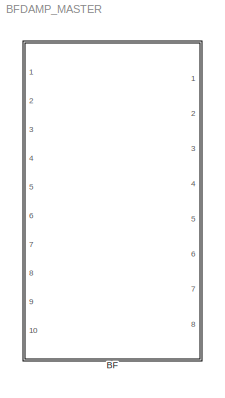
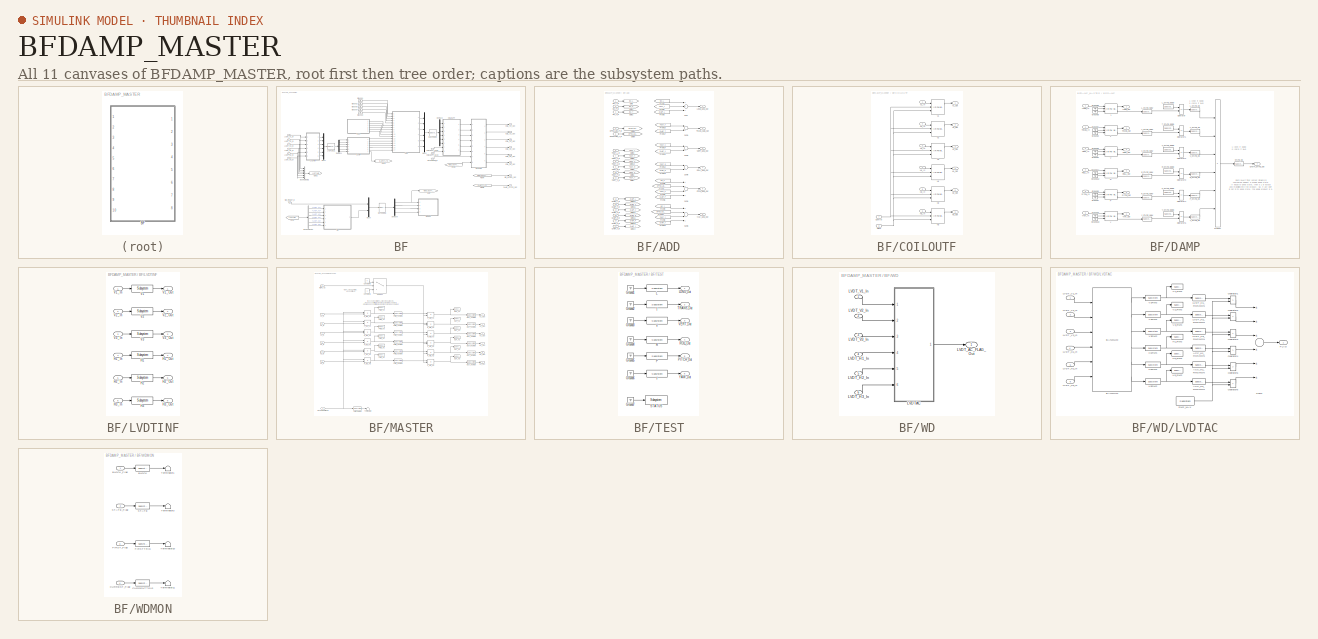
[diagram: thumbnail index - all 11 canvases of the model, root first then tree order]
MODEL BFDAMP_MASTER
KIND library
BLOCK [SubSystem] BF
  Description = SIXOSEMSTAGE_FACE_MASTER
  Ports = [10, 8]
  RequestExecContextInheritance = off
  SID = 1
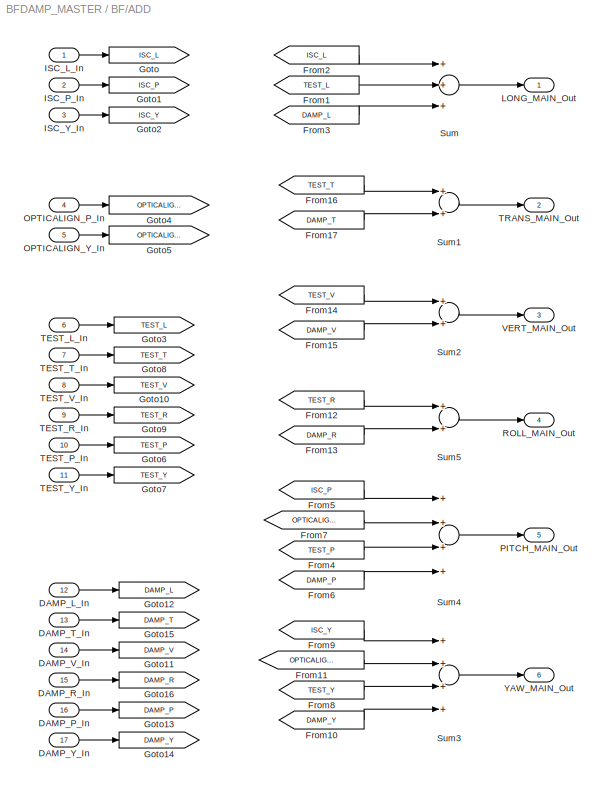
BLOCK [SubSystem] BF/ADD
  Ports = [17, 6]
  RequestExecContextInheritance = off
  SID = 9
BLOCK [Inport] BF/ADD/DAMP_L_In
  IconDisplay = Port number
  Port = 12
  SID = 271
BLOCK [Inport] BF/ADD/DAMP_P_In
  IconDisplay = Port number
  Port = 16
  SID = 275
BLOCK [Inport] BF/ADD/DAMP_R_In
  IconDisplay = Port number
  Port = 15
  SID = 274
BLOCK [Inport] BF/ADD/DAMP_T_In
  IconDisplay = Port number
  Port = 13
  SID = 272
BLOCK [Inport] BF/ADD/DAMP_V_In
  IconDisplay = Port number
  Port = 14
  SID = 273
BLOCK [Inport] BF/ADD/DAMP_Y_In
  IconDisplay = Port number
  Port = 17
  SID = 276
BLOCK [From] BF/ADD/From1
  CloseFcn = tagdialog Close
  GotoTag = TEST_L
  SID = 277
BLOCK [From] BF/ADD/From10
  CloseFcn = tagdialog Close
  GotoTag = DAMP_Y
  SID = 278
BLOCK [From] BF/ADD/From11
  CloseFcn = tagdialog Close
  GotoTag = OPTICALIGN_Y
  SID = 279
BLOCK [From] BF/ADD/From12
  CloseFcn = tagdialog Close
  GotoTag = TEST_R
  SID = 280
BLOCK [From] BF/ADD/From13
  CloseFcn = tagdialog Close
  GotoTag = DAMP_R
  SID = 281
BLOCK [From] BF/ADD/From14
  CloseFcn = tagdialog Close
  GotoTag = TEST_V
  SID = 282
BLOCK [From] BF/ADD/From15
  CloseFcn = tagdialog Close
  GotoTag = DAMP_V
  SID = 283
BLOCK [From] BF/ADD/From16
  CloseFcn = tagdialog Close
  GotoTag = TEST_T
  SID = 284
BLOCK [From] BF/ADD/From17
  CloseFcn = tagdialog Close
  GotoTag = DAMP_T
  SID = 285
BLOCK [From] BF/ADD/From2
  CloseFcn = tagdialog Close
  GotoTag = ISC_L
  SID = 286
BLOCK [From] BF/ADD/From3
  CloseFcn = tagdialog Close
  GotoTag = DAMP_L
  SID = 287
BLOCK [From] BF/ADD/From4
  CloseFcn = tagdialog Close
  GotoTag = TEST_P
  SID = 288
BLOCK [From] BF/ADD/From5
  CloseFcn = tagdialog Close
  GotoTag = ISC_P
  SID = 289
BLOCK [From] BF/ADD/From6
  CloseFcn = tagdialog Close
  GotoTag = DAMP_P
  SID = 290
BLOCK [From] BF/ADD/From7
  CloseFcn = tagdialog Close
  GotoTag = OPTICALIGN_P
  SID = 291
BLOCK [From] BF/ADD/From8
  CloseFcn = tagdialog Close
  GotoTag = TEST_Y
  SID = 292
BLOCK [From] BF/ADD/From9
  CloseFcn = tagdialog Close
  GotoTag = ISC_Y
  SID = 293
BLOCK [Goto] BF/ADD/Goto
  GotoTag = ISC_L
  SID = 294
BLOCK [Goto] BF/ADD/Goto1
  GotoTag = ISC_P
  SID = 295
BLOCK [Goto] BF/ADD/Goto10
  GotoTag = TEST_V
  SID = 296
BLOCK [Goto] BF/ADD/Goto11
  GotoTag = DAMP_V
  SID = 297
BLOCK [Goto] BF/ADD/Goto12
  GotoTag = DAMP_L
  SID = 298
BLOCK [Goto] BF/ADD/Goto13
  GotoTag = DAMP_P
  SID = 299
BLOCK [Goto] BF/ADD/Goto14
  GotoTag = DAMP_Y
  SID = 300
BLOCK [Goto] BF/ADD/Goto15
  GotoTag = DAMP_T
  SID = 301
BLOCK [Goto] BF/ADD/Goto16
  GotoTag = DAMP_R
  SID = 302
BLOCK [Goto] BF/ADD/Goto2
  GotoTag = ISC_Y
  SID = 303
BLOCK [Goto] BF/ADD/Goto3
  GotoTag = TEST_L
  SID = 304
BLOCK [Goto] BF/ADD/Goto4
  GotoTag = OPTICALIGN_P
  SID = 305
BLOCK [Goto] BF/ADD/Goto5
  GotoTag = OPTICALIGN_Y
  SID = 306
BLOCK [Goto] BF/ADD/Goto6
  GotoTag = TEST_P
  SID = 307
BLOCK [Goto] BF/ADD/Goto7
  GotoTag = TEST_Y
  SID = 308
BLOCK [Goto] BF/ADD/Goto8
  GotoTag = TEST_T
  SID = 309
BLOCK [Goto] BF/ADD/Goto9
  GotoTag = TEST_R
  SID = 310
BLOCK [Inport] BF/ADD/ISC_L_In
  IconDisplay = Port number
  SID = 260
BLOCK [Inport] BF/ADD/ISC_P_In
  IconDisplay = Port number
  Port = 2
  SID = 261
BLOCK [Inport] BF/ADD/ISC_Y_In
  IconDisplay = Port number
  Port = 3
  SID = 262
BLOCK [Outport] BF/ADD/LONG_MAIN_Out
  IconDisplay = Port number
  SID = 317
BLOCK [Inport] BF/ADD/OPTICALIGN_P_In
  IconDisplay = Port number
  Port = 4
  SID = 263
BLOCK [Inport] BF/ADD/OPTICALIGN_Y_In
  IconDisplay = Port number
  Port = 5
  SID = 264
BLOCK [Outport] BF/ADD/PITCH_MAIN_Out
  IconDisplay = Port number
  Port = 5
  SID = 321
BLOCK [Outport] BF/ADD/ROLL_MAIN_Out
  IconDisplay = Port number
  Port = 4
  SID = 320
BLOCK [Sum] BF/ADD/Sum
  InputSameDT = off
  Inputs = +++
  OutDataTypeStr = Inherit: Inherit via internal rule
  Ports = [3, 1]
  SID = 311
  SaturateOnIntegerOverflow = off
BLOCK [Sum] BF/ADD/Sum1
  InputSameDT = off
  OutDataTypeStr = Inherit: Inherit via internal rule
  Ports = [2, 1]
  SID = 312
  SaturateOnIntegerOverflow = off
BLOCK [Sum] BF/ADD/Sum2
  InputSameDT = off
  OutDataTypeStr = Inherit: Inherit via internal rule
  Ports = [2, 1]
  SID = 313
  SaturateOnIntegerOverflow = off
BLOCK [Sum] BF/ADD/Sum3
  InputSameDT = off
  Inputs = ++++
  OutDataTypeStr = Inherit: Inherit via internal rule
  Ports = [4, 1]
  SID = 314
  SaturateOnIntegerOverflow = off
BLOCK [Sum] BF/ADD/Sum4
  InputSameDT = off
  Inputs = ++++
  OutDataTypeStr = Inherit: Inherit via internal rule
  Ports = [4, 1]
  SID = 315
  SaturateOnIntegerOverflow = off
BLOCK [Sum] BF/ADD/Sum5
  InputSameDT = off
  OutDataTypeStr = Inherit: Inherit via internal rule
  Ports = [2, 1]
  SID = 316
  SaturateOnIntegerOverflow = off
BLOCK [Inport] BF/ADD/TEST_L_In
  IconDisplay = Port number
  Port = 6
  SID = 265
BLOCK [Inport] BF/ADD/TEST_P_In
  IconDisplay = Port number
  Port = 10
  SID = 269
BLOCK [Inport] BF/ADD/TEST_R_In
  IconDisplay = Port number
  Port = 9
  SID = 268
BLOCK [Inport] BF/ADD/TEST_T_In
  IconDisplay = Port number
  Port = 7
  SID = 266
BLOCK [Inport] BF/ADD/TEST_V_In
  IconDisplay = Port number
  Port = 8
  SID = 267
BLOCK [Inport] BF/ADD/TEST_Y_In
  IconDisplay = Port number
  Port = 11
  SID = 270
BLOCK [Outport] BF/ADD/TRANS_MAIN_Out
  IconDisplay = Port number
  Port = 2
  SID = 318
BLOCK [Outport] BF/ADD/VERT_MAIN_Out
  IconDisplay = Port number
  Port = 3
  SID = 319
BLOCK [Outport] BF/ADD/YAW_MAIN_Out
  IconDisplay = Port number
  Port = 6
  SID = 322
BLOCK [BusCreator] BF/Bus\nCreator1
  DisplayOption = bar
  Inputs = 'LVDT_H1','LVDT_H2','LVDT_H3','LVDT_V1','LVDT_V2','LVDT_V3'
  Ports = [6, 1]
  SID = 34
BLOCK [BusSelector] BF/Bus\nSelector
  OutputSignals = LVDT_V1,LVDT_V2,LVDT_V3,LVDT_H1,LVDT_H2,LVDT_H3
  Ports = [1, 6]
  SID = 35
BLOCK [SubSystem] BF/COILOUTF
  Ports = [8, 6]
  RequestExecContextInheritance = off
  SID = 36
BLOCK [Inport] BF/COILOUTF/Control
  IconDisplay = Port number
  Port = 7
  SID = 349
BLOCK [Reference] BF/COILOUTF/H1  REF=cdsFiltCtrl/IIR FM with control
  AttributesFormatString = %<Tag>
  Description = cdsFiltCntrl is the standard IIR filter module (exactly the same as cdsFilt) but with added control data output 'Ctrl'. Filter module digital signal output appears on the first output, which is called 'Val'. 'Ctrl' output has a bit pattern encoding the state of filter's on/off switches (FM1 through FM10). The bit values are:\n                                                                        ...<+4621ch>  <repeated x12 — deduplicated; at blocks: H1, H2, H3, V1, V2, V3, L, P, R, T, V, Y>
  Ports = [3, 2]
  SID = 354
  SourceBlock = cdsFiltCtrl/IIR FM with control
  SourceType = SubSystem
  Tag = cdsFiltCtrl
BLOCK [Inport] BF/COILOUTF/H1_In
  IconDisplay = Port number
  Port = 4
  SID = 346
BLOCK [Outport] BF/COILOUTF/H1_Out
  IconDisplay = Port number
  Port = 4
  SID = 360
BLOCK [Reference] BF/COILOUTF/H2  REF=cdsFiltCtrl/IIR FM with control
  AttributesFormatString = %<Tag>
  Ports = [3, 2]
  SID = 355
  SourceBlock = cdsFiltCtrl/IIR FM with control
  SourceType = SubSystem
  Tag = cdsFiltCtrl
BLOCK [Inport] BF/COILOUTF/H2_In
  IconDisplay = Port number
  Port = 5
  SID = 347
BLOCK [Outport] BF/COILOUTF/H2_Out
  IconDisplay = Port number
  Port = 5
  SID = 361
BLOCK [Reference] BF/COILOUTF/H3  REF=cdsFiltCtrl/IIR FM with control
  AttributesFormatString = %<Tag>
  Ports = [3, 2]
  SID = 356
  SourceBlock = cdsFiltCtrl/IIR FM with control
  SourceType = SubSystem
  Tag = cdsFiltCtrl
BLOCK [Inport] BF/COILOUTF/H3_In
  IconDisplay = Port number
  Port = 6
  SID = 348
BLOCK [Outport] BF/COILOUTF/H3_Out
  IconDisplay = Port number
  Port = 6
  SID = 362
BLOCK [Inport] BF/COILOUTF/Mask
  IconDisplay = Port number
  Port = 8
  SID = 350
BLOCK [Reference] BF/COILOUTF/V1  REF=cdsFiltCtrl/IIR FM with control
  AttributesFormatString = %<Tag>
  Ports = [3, 2]
  SID = 351
  SourceBlock = cdsFiltCtrl/IIR FM with control
  SourceType = SubSystem
  Tag = cdsFiltCtrl
BLOCK [Inport] BF/COILOUTF/V1_In
  IconDisplay = Port number
  SID = 343
BLOCK [Outport] BF/COILOUTF/V1_Out
  IconDisplay = Port number
  SID = 357
BLOCK [Reference] BF/COILOUTF/V2  REF=cdsFiltCtrl/IIR FM with control
  AttributesFormatString = %<Tag>
  Ports = [3, 2]
  SID = 352
  SourceBlock = cdsFiltCtrl/IIR FM with control
  SourceType = SubSystem
  Tag = cdsFiltCtrl
BLOCK [Inport] BF/COILOUTF/V2_In
  IconDisplay = Port number
  Port = 2
  SID = 344
BLOCK [Outport] BF/COILOUTF/V2_Out
  IconDisplay = Port number
  Port = 2
  SID = 358
BLOCK [Reference] BF/COILOUTF/V3  REF=cdsFiltCtrl/IIR FM with control
  AttributesFormatString = %<Tag>
  Ports = [3, 2]
  SID = 353
  SourceBlock = cdsFiltCtrl/IIR FM with control
  SourceType = SubSystem
  Tag = cdsFiltCtrl
BLOCK [Inport] BF/COILOUTF/V3_In
  IconDisplay = Port number
  Port = 3
  SID = 345
BLOCK [Outport] BF/COILOUTF/V3_Out
  IconDisplay = Port number
  Port = 3
  SID = 359
BLOCK [Inport] BF/COILOUTF_CTRL
  IconDisplay = Port number
  Port = 7
  SID = 5
BLOCK [Inport] BF/COILOUTF_MASK
  IconDisplay = Port number
  Port = 8
  SID = 6
BLOCK [Outport] BF/COIL_H1_Out
  IconDisplay = Port number
  Port = 6
  SID = 427
BLOCK [Outport] BF/COIL_H2_Out
  IconDisplay = Port number
  Port = 7
  SID = 428
BLOCK [Outport] BF/COIL_H3_Out
  IconDisplay = Port number
  Port = 8
  SID = 429
BLOCK [Outport] BF/COIL_V1_Out
  IconDisplay = Port number
  Port = 3
  SID = 424
BLOCK [Outport] BF/COIL_V2_Out
  IconDisplay = Port number
  Port = 4
  SID = 425
BLOCK [Outport] BF/COIL_V3_Out
  IconDisplay = Port number
  Port = 5
  SID = 426
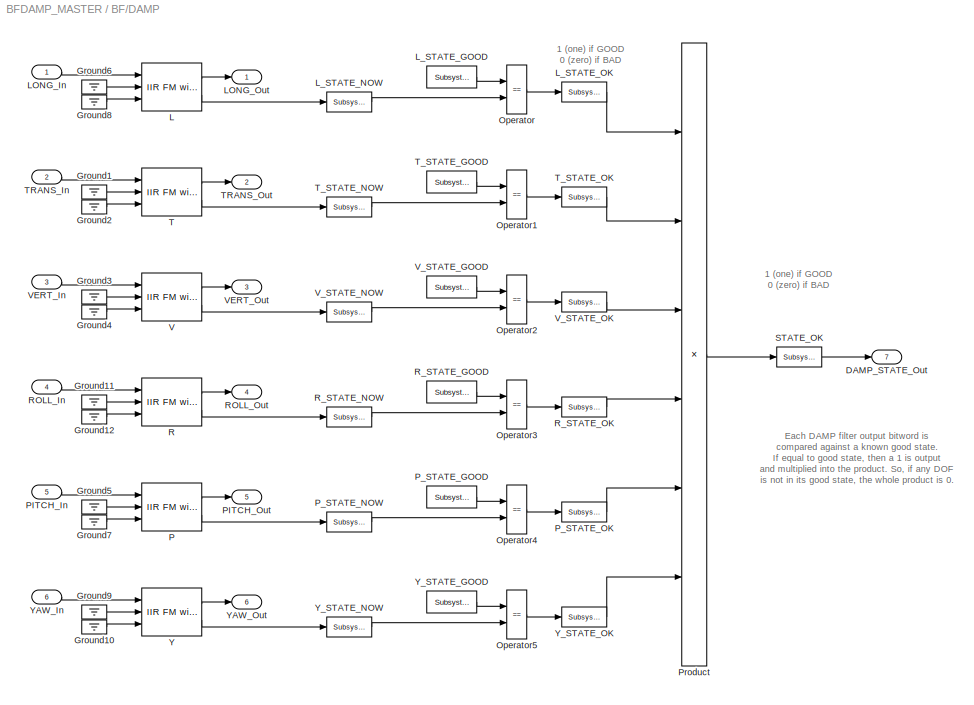
BLOCK [SubSystem] BF/DAMP
  Ports = [6, 7]
  RequestExecContextInheritance = off
  SID = 48
BLOCK [Outport] BF/DAMP/DAMP_STATE_Out
  IconDisplay = Port number
  Port = 7
  SID = 78
BLOCK [Ground] BF/DAMP/Ground1
  SID = 64
BLOCK [Ground] BF/DAMP/Ground10
  SID = 227
BLOCK [Ground] BF/DAMP/Ground11
  SID = 228
BLOCK [Ground] BF/DAMP/Ground12
  SID = 229
BLOCK [Ground] BF/DAMP/Ground2
  SID = 65
BLOCK [Ground] BF/DAMP/Ground3
  SID = 66
BLOCK [Ground] BF/DAMP/Ground4
  SID = 67
BLOCK [Ground] BF/DAMP/Ground5
  SID = 224
BLOCK [Ground] BF/DAMP/Ground6
  SID = 68
BLOCK [Ground] BF/DAMP/Ground7
  SID = 225
BLOCK [Ground] BF/DAMP/Ground8
  SID = 69
BLOCK [Ground] BF/DAMP/Ground9
  SID = 226
BLOCK [Reference] BF/DAMP/L  REF=cdsFiltCtrl/IIR FM with control
  AttributesFormatString = %<Tag>
  Ports = [3, 2]
  SID = 56
  SourceBlock = cdsFiltCtrl/IIR FM with control
  SourceType = SubSystem
  Tag = cdsFiltCtrl
BLOCK [Inport] BF/DAMP/LONG_In
  IconDisplay = Port number
  SID = 49
BLOCK [Outport] BF/DAMP/LONG_Out
  IconDisplay = Port number
  SID = 75
BLOCK [Reference] BF/DAMP/L_STATE_GOOD  REF=cdsEpicsIn/Subsystem
  AttributesFormatString = %<Tag>
  Description = Purpose:                                                                              \nCreate an EPICS input channel connection to the FE realtime controls.                 \n                                                                                      \nOperation:                                                                            \nOutputs value from an EPICS ai record. Value is ...<+266ch>  <repeated x7 — deduplicated; at blocks: L_STATE_GOOD, P_STATE_GOOD, R_STATE_GOOD, T_STATE_GOOD, V_STATE_GOOD, Y_STATE_GOOD, RMS_MAX>
  Ports = [0, 1]
  SID = 57
  SourceBlock = cdsEpicsIn/Subsystem
  SourceType = SubSystem
  Tag = cdsEpicsIn
BLOCK [Reference] BF/DAMP/L_STATE_NOW  REF=cdsEpicsOut/Subsystem
  AttributesFormatString = %<Tag>
  Description = Purpose:                                          \nOutput a FE signal to an EPICS channel.           \n                                                  \nOperation:                                        \nTakes input value and passes it to EPICS record.  \n                                                  \nUsage:                                            \nName the part with the desired EPICS...<+14ch>  <repeated x32 — deduplicated; at blocks: L_STATE_NOW, L_STATE_OK, P_STATE_NOW, P_STATE_OK, R_STATE_NOW, R_STATE_OK, STATE_OK, T_STATE_NOW, T_STATE_OK, V_STATE_NOW, V_STATE_OK, Y_STATE_NOW, Y_STATE_OK, OUT_H1MON, OUT_H2MON, OUT_H3MON, +16 more>
  Ports = [1, 1]
  SID = 58
  SourceBlock = cdsEpicsOut/Subsystem
  SourceType = SubSystem
  Tag = cdsEpicsOutput
BLOCK [Reference] BF/DAMP/L_STATE_OK  REF=cdsEpicsOut/Subsystem
  AttributesFormatString = %<Tag>
  Ports = [1, 1]
  SID = 59
  SourceBlock = cdsEpicsOut/Subsystem
  SourceType = SubSystem
  Tag = cdsEpicsOutput
BLOCK [RelationalOperator] BF/DAMP/Operator
  InputSameDT = off
  Operator = ==
  OutDataTypeStr = boolean
  Ports = [2, 1]
  SID = 70
BLOCK [RelationalOperator] BF/DAMP/Operator1
  InputSameDT = off
  Operator = ==
  OutDataTypeStr = boolean
  Ports = [2, 1]
  SID = 71
BLOCK [RelationalOperator] BF/DAMP/Operator2
  InputSameDT = off
  Operator = ==
  OutDataTypeStr = boolean
  Ports = [2, 1]
  SID = 72
BLOCK [RelationalOperator] BF/DAMP/Operator3
  InputSameDT = off
  Operator = ==
  OutDataTypeStr = boolean
  Ports = [2, 1]
  SID = 230
BLOCK [RelationalOperator] BF/DAMP/Operator4
  InputSameDT = off
  Operator = ==
  OutDataTypeStr = boolean
  Ports = [2, 1]
  SID = 231
BLOCK [RelationalOperator] BF/DAMP/Operator5
  InputSameDT = off
  Operator = ==
  OutDataTypeStr = boolean
  Ports = [2, 1]
  SID = 232
BLOCK [Reference] BF/DAMP/P  REF=cdsFiltCtrl/IIR FM with control
  AttributesFormatString = %<Tag>
  Ports = [3, 2]
  SID = 220
  SourceBlock = cdsFiltCtrl/IIR FM with control
  SourceType = SubSystem
  Tag = cdsFiltCtrl
BLOCK [Inport] BF/DAMP/PITCH_In
  IconDisplay = Port number
  Port = 5
  SID = 210
BLOCK [Outport] BF/DAMP/PITCH_Out
  IconDisplay = Port number
  Port = 5
  SID = 234
BLOCK [Reference] BF/DAMP/P_STATE_GOOD  REF=cdsEpicsIn/Subsystem
  AttributesFormatString = %<Tag>
  Ports = [0, 1]
  SID = 221
  SourceBlock = cdsEpicsIn/Subsystem
  SourceType = SubSystem
  Tag = cdsEpicsIn
BLOCK [Reference] BF/DAMP/P_STATE_NOW  REF=cdsEpicsOut/Subsystem
  AttributesFormatString = %<Tag>
  Ports = [1, 1]
  SID = 222
  SourceBlock = cdsEpicsOut/Subsystem
  SourceType = SubSystem
  Tag = cdsEpicsOutput
BLOCK [Reference] BF/DAMP/P_STATE_OK  REF=cdsEpicsOut/Subsystem
  AttributesFormatString = %<Tag>
  Ports = [1, 1]
  SID = 223
  SourceBlock = cdsEpicsOut/Subsystem
  SourceType = SubSystem
  Tag = cdsEpicsOutput
BLOCK [Product] BF/DAMP/Product
  InputSameDT = off
  Inputs = 6
  OutDataTypeStr = Inherit: Inherit via internal rule
  Ports = [6, 1]
  SID = 73
  SaturateOnIntegerOverflow = off
BLOCK [Reference] BF/DAMP/R  REF=cdsFiltCtrl/IIR FM with control
  AttributesFormatString = %<Tag>
  Ports = [3, 2]
  SID = 216
  SourceBlock = cdsFiltCtrl/IIR FM with control
  SourceType = SubSystem
  Tag = cdsFiltCtrl
BLOCK [Inport] BF/DAMP/ROLL_In
  IconDisplay = Port number
  Port = 4
  SID = 209
BLOCK [Outport] BF/DAMP/ROLL_Out
  IconDisplay = Port number
  Port = 4
  SID = 233
BLOCK [Reference] BF/DAMP/R_STATE_GOOD  REF=cdsEpicsIn/Subsystem
  AttributesFormatString = %<Tag>
  Ports = [0, 1]
  SID = 217
  SourceBlock = cdsEpicsIn/Subsystem
  SourceType = SubSystem
  Tag = cdsEpicsIn
BLOCK [Reference] BF/DAMP/R_STATE_NOW  REF=cdsEpicsOut/Subsystem
  AttributesFormatString = %<Tag>
  Ports = [1, 1]
  SID = 218
  SourceBlock = cdsEpicsOut/Subsystem
  SourceType = SubSystem
  Tag = cdsEpicsOutput
BLOCK [Reference] BF/DAMP/R_STATE_OK  REF=cdsEpicsOut/Subsystem
  AttributesFormatString = %<Tag>
  Ports = [1, 1]
  SID = 219
  SourceBlock = cdsEpicsOut/Subsystem
  SourceType = SubSystem
  Tag = cdsEpicsOutput
BLOCK [Reference] BF/DAMP/STATE_OK  REF=cdsEpicsOut/Subsystem
  AttributesFormatString = %<Tag>
  Ports = [1, 1]
  SID = 74
  SourceBlock = cdsEpicsOut/Subsystem
  SourceType = SubSystem
  Tag = cdsEpicsOutput
BLOCK [Reference] BF/DAMP/T  REF=cdsFiltCtrl/IIR FM with control
  AttributesFormatString = %<Tag>
  Ports = [3, 2]
  SID = 60
  SourceBlock = cdsFiltCtrl/IIR FM with control
  SourceType = SubSystem
  Tag = cdsFiltCtrl
BLOCK [Inport] BF/DAMP/TRANS_In
  IconDisplay = Port number
  Port = 2
  SID = 50
BLOCK [Outport] BF/DAMP/TRANS_Out
  IconDisplay = Port number
  Port = 2
  SID = 76
BLOCK [Reference] BF/DAMP/T_STATE_GOOD  REF=cdsEpicsIn/Subsystem
  AttributesFormatString = %<Tag>
  Ports = [0, 1]
  SID = 61
  SourceBlock = cdsEpicsIn/Subsystem
  SourceType = SubSystem
  Tag = cdsEpicsIn
BLOCK [Reference] BF/DAMP/T_STATE_NOW  REF=cdsEpicsOut/Subsystem
  AttributesFormatString = %<Tag>
  Ports = [1, 1]
  SID = 62
  SourceBlock = cdsEpicsOut/Subsystem
  SourceType = SubSystem
  Tag = cdsEpicsOutput
BLOCK [Reference] BF/DAMP/T_STATE_OK  REF=cdsEpicsOut/Subsystem
  AttributesFormatString = %<Tag>
  Ports = [1, 1]
  SID = 63
  SourceBlock = cdsEpicsOut/Subsystem
  SourceType = SubSystem
  Tag = cdsEpicsOutput
BLOCK [Reference] BF/DAMP/V  REF=cdsFiltCtrl/IIR FM with control
  AttributesFormatString = %<Tag>
  Ports = [3, 2]
  SID = 52
  SourceBlock = cdsFiltCtrl/IIR FM with control
  SourceType = SubSystem
  Tag = cdsFiltCtrl
BLOCK [Inport] BF/DAMP/VERT_In
  IconDisplay = Port number
  Port = 3
  SID = 51
BLOCK [Outport] BF/DAMP/VERT_Out
  IconDisplay = Port number
  Port = 3
  SID = 77
BLOCK [Reference] BF/DAMP/V_STATE_GOOD  REF=cdsEpicsIn/Subsystem
  AttributesFormatString = %<Tag>
  Ports = [0, 1]
  SID = 53
  SourceBlock = cdsEpicsIn/Subsystem
  SourceType = SubSystem
  Tag = cdsEpicsIn
BLOCK [Reference] BF/DAMP/V_STATE_NOW  REF=cdsEpicsOut/Subsystem
  AttributesFormatString = %<Tag>
  Ports = [1, 1]
  SID = 54
  SourceBlock = cdsEpicsOut/Subsystem
  SourceType = SubSystem
  Tag = cdsEpicsOutput
BLOCK [Reference] BF/DAMP/V_STATE_OK  REF=cdsEpicsOut/Subsystem
  AttributesFormatString = %<Tag>
  Ports = [1, 1]
  SID = 55
  SourceBlock = cdsEpicsOut/Subsystem
  SourceType = SubSystem
  Tag = cdsEpicsOutput
BLOCK [Reference] BF/DAMP/Y  REF=cdsFiltCtrl/IIR FM with control
  AttributesFormatString = %<Tag>
  Ports = [3, 2]
  SID = 212
  SourceBlock = cdsFiltCtrl/IIR FM with control
  SourceType = SubSystem
  Tag = cdsFiltCtrl
BLOCK [Inport] BF/DAMP/YAW_In
  IconDisplay = Port number
  Port = 6
  SID = 211
BLOCK [Outport] BF/DAMP/YAW_Out
  IconDisplay = Port number
  Port = 6
  SID = 235
BLOCK [Reference] BF/DAMP/Y_STATE_GOOD  REF=cdsEpicsIn/Subsystem
  AttributesFormatString = %<Tag>
  Ports = [0, 1]
  SID = 213
  SourceBlock = cdsEpicsIn/Subsystem
  SourceType = SubSystem
  Tag = cdsEpicsIn
BLOCK [Reference] BF/DAMP/Y_STATE_NOW  REF=cdsEpicsOut/Subsystem
  AttributesFormatString = %<Tag>
  Ports = [1, 1]
  SID = 214
  SourceBlock = cdsEpicsOut/Subsystem
  SourceType = SubSystem
  Tag = cdsEpicsOutput
BLOCK [Reference] BF/DAMP/Y_STATE_OK  REF=cdsEpicsOut/Subsystem
  AttributesFormatString = %<Tag>
  Ports = [1, 1]
  SID = 215
  SourceBlock = cdsEpicsOut/Subsystem
  SourceType = SubSystem
  Tag = cdsEpicsOutput
BLOCK [Outport] BF/DAMP_STATE_Out
  IconDisplay = Port number
  Port = 2
  SID = 199
BLOCK [Demux] BF/Demux1
  DisplayOption = bar
  Outputs = 6
  Ports = [1, 6]
  SID = 236
BLOCK [Demux] BF/Demux3
  DisplayOption = bar
  Outputs = 6
  Ports = [1, 6]
  SID = 363
BLOCK [Demux] BF/Demux9
  DisplayOption = bar
  Ports = [1, 4]
  SID = 82
BLOCK [Reference] BF/EUL2OSEM  REF=cdsMuxMatrix/Subsystem
  AttributesFormatString = %<Tag>
  Description = Any size matrix. Inputs and outputs must be connected using Mux and Demux parts.
  Ports = [1, 1]
  SID = 364
  SourceBlock = cdsMuxMatrix/Subsystem
  SourceType = SubSystem
  Tag = cdsMuxMatrix
BLOCK [From] BF/From2
  CloseFcn = tagdialog Close
  GotoTag = LVDT2WD
  SID = 83
BLOCK [From] BF/From3
  CloseFcn = tagdialog Close
  GotoTag = WDBLOCKFLAG
  SID = 84
BLOCK [From] BF/From4
  CloseFcn = tagdialog Close
  GotoTag = WDBLOCKFLAG
  SID = 85
BLOCK [From] BF/From5
  CloseFcn = tagdialog Close
  GotoTag = DAMPSTATE
  SID = 86
BLOCK [Goto] BF/Goto
  GotoTag = WDBLOCKFLAG
  SID = 87
BLOCK [Goto] BF/Goto2
  GotoTag = LVDT2WD
  SID = 88
BLOCK [Goto] BF/Goto3
  GotoTag = DAMPSTATE
  SID = 89
BLOCK [Ground] BF/Ground1
  SID = 430
BLOCK [Ground] BF/Ground2
  SID = 431
BLOCK [Ground] BF/Ground3
  SID = 432
BLOCK [Ground] BF/Ground4
  SID = 433
BLOCK [Ground] BF/Ground5
  SID = 434
BLOCK [Reference] BF/LVDT2EUL  REF=cdsMuxMatrix/Subsystem
  AttributesFormatString = %<Tag>
  Description = Any size matrix. Inputs and outputs must be connected using Mux and Demux parts.
  Ports = [1, 1]
  SID = 238
  SourceBlock = cdsMuxMatrix/Subsystem
  SourceType = SubSystem
  Tag = cdsMuxMatrix
BLOCK [SubSystem] BF/LVDTINF
  Ports = [6, 6]
  RequestExecContextInheritance = off
  SID = 90
BLOCK [Reference] BF/LVDTINF/H1  REF=cdsFilt/Subsystem
  AttributesFormatString = %<Tag>
  Description = Purpose:                                                                                                                                                                                                                                  \nStandard CDS IIR filter module.                                                                                                                                     ...<+1302ch>  <repeated x12 — deduplicated; at blocks: H1, H2, H3, V1, V2, V3, L, P, R, T, V, Y>
  Ports = [1, 1]
  SID = 204
  SourceBlock = cdsFilt/Subsystem
  SourceType = SubSystem
  Tag = cdsFilt
BLOCK [Inport] BF/LVDTINF/H1_In
  IconDisplay = Port number
  Port = 4
  SID = 200
BLOCK [Outport] BF/LVDTINF/H1_Out
  IconDisplay = Port number
  Port = 4
  SID = 206
BLOCK [Reference] BF/LVDTINF/H2  REF=cdsFilt/Subsystem
  AttributesFormatString = %<Tag>
  Ports = [1, 1]
  SID = 205
  SourceBlock = cdsFilt/Subsystem
  SourceType = SubSystem
  Tag = cdsFilt
BLOCK [Inport] BF/LVDTINF/H2_In
  IconDisplay = Port number
  Port = 5
  SID = 201
BLOCK [Outport] BF/LVDTINF/H2_Out
  IconDisplay = Port number
  Port = 5
  SID = 207
BLOCK [Reference] BF/LVDTINF/H3  REF=cdsFilt/Subsystem
  AttributesFormatString = %<Tag>
  Ports = [1, 1]
  SID = 203
  SourceBlock = cdsFilt/Subsystem
  SourceType = SubSystem
  Tag = cdsFilt
BLOCK [Inport] BF/LVDTINF/H3_In
  IconDisplay = Port number
  Port = 6
  SID = 202
BLOCK [Outport] BF/LVDTINF/H3_Out
  IconDisplay = Port number
  Port = 6
  SID = 208
BLOCK [Reference] BF/LVDTINF/V1  REF=cdsFilt/Subsystem
  AttributesFormatString = %<Tag>
  Ports = [1, 1]
  SID = 95
  SourceBlock = cdsFilt/Subsystem
  SourceType = SubSystem
  Tag = cdsFilt
BLOCK [Inport] BF/LVDTINF/V1_In
  IconDisplay = Port number
  SID = 91
BLOCK [Outport] BF/LVDTINF/V1_Out
  IconDisplay = Port number
  SID = 97
BLOCK [Reference] BF/LVDTINF/V2  REF=cdsFilt/Subsystem
  AttributesFormatString = %<Tag>
  Ports = [1, 1]
  SID = 96
  SourceBlock = cdsFilt/Subsystem
  SourceType = SubSystem
  Tag = cdsFilt
BLOCK [Inport] BF/LVDTINF/V2_In
  IconDisplay = Port number
  Port = 2
  SID = 92
BLOCK [Outport] BF/LVDTINF/V2_Out
  IconDisplay = Port number
  Port = 2
  SID = 98
BLOCK [Reference] BF/LVDTINF/V3  REF=cdsFilt/Subsystem
  AttributesFormatString = %<Tag>
  Ports = [1, 1]
  SID = 94
  SourceBlock = cdsFilt/Subsystem
  SourceType = SubSystem
  Tag = cdsFilt
BLOCK [Inport] BF/LVDTINF/V3_In
  IconDisplay = Port number
  Port = 3
  SID = 93
BLOCK [Outport] BF/LVDTINF/V3_Out
  IconDisplay = Port number
  Port = 3
  SID = 99
BLOCK [Inport] BF/LVDT_H1_In
  IconDisplay = Port number
  Port = 4
  SID = 239
BLOCK [Inport] BF/LVDT_H2_In
  IconDisplay = Port number
  Port = 5
  SID = 240
BLOCK [Inport] BF/LVDT_H3_In
  IconDisplay = Port number
  Port = 6
  SID = 241
BLOCK [Inport] BF/LVDT_V1_In
  IconDisplay = Port number
  SID = 2
BLOCK [Inport] BF/LVDT_V2_In
  IconDisplay = Port number
  Port = 2
  SID = 3
BLOCK [Inport] BF/LVDT_V3_In
  IconDisplay = Port number
  Port = 3
  SID = 4
BLOCK [SubSystem] BF/MASTER
  Ports = [8, 6]
  RequestExecContextInheritance = off
  SID = 366
BLOCK [Switch] BF/MASTER/Choice1
  Criteria = u2 ~= 0
  InputSameDT = off
  SID = 375
  SaturateOnIntegerOverflow = off
  Threshold = 0.5
BLOCK [Constant] BF/MASTER/Constant0
  SID = 376
  Value = 0
BLOCK [Constant] BF/MASTER/Constant1
  SID = 377
BLOCK [Inport] BF/MASTER/H1_In
  IconDisplay = Port number
  Port = 4
  SID = 370
BLOCK [Outport] BF/MASTER/H1_Out
  IconDisplay = Port number
  Port = 4
  SID = 419
BLOCK [Inport] BF/MASTER/H2_In
  IconDisplay = Port number
  Port = 5
  SID = 371
BLOCK [Outport] BF/MASTER/H2_Out
  IconDisplay = Port number
  Port = 5
  SID = 420
BLOCK [Inport] BF/MASTER/H3_In
  IconDisplay = Port number
  Port = 6
  SID = 372
BLOCK [Outport] BF/MASTER/H3_Out
  IconDisplay = Port number
  Port = 6
  SID = 421
BLOCK [Inport] BF/MASTER/MASTERSWITCH
  IconDisplay = Port number
  Port = 7
  SID = 373
BLOCK [Reference] BF/MASTER/OUT_H1  REF=cdsTP/Subsystem
  AttributesFormatString = %<Tag>
  Ports = [1]
  SID = 378
  SourceBlock = cdsTP/Subsystem
  SourceType = SubSystem
  Tag = Test Point
BLOCK [Reference] BF/MASTER/OUT_H1MON  REF=cdsEpicsOut/Subsystem
  AttributesFormatString = %<Tag>
  Ports = [1, 1]
  SID = 379
  SourceBlock = cdsEpicsOut/Subsystem
  SourceType = SubSystem
  Tag = cdsEpicsOutput
BLOCK [Reference] BF/MASTER/OUT_H2  REF=cdsTP/Subsystem
  AttributesFormatString = %<Tag>
  Ports = [1]
  SID = 380
  SourceBlock = cdsTP/Subsystem
  SourceType = SubSystem
  Tag = Test Point
BLOCK [Reference] BF/MASTER/OUT_H2MON  REF=cdsEpicsOut/Subsystem
  AttributesFormatString = %<Tag>
  Ports = [1, 1]
  SID = 381
  SourceBlock = cdsEpicsOut/Subsystem
  SourceType = SubSystem
  Tag = cdsEpicsOutput
BLOCK [Reference] BF/MASTER/OUT_H3  REF=cdsTP/Subsystem
  AttributesFormatString = %<Tag>
  Ports = [1]
  SID = 382
  SourceBlock = cdsTP/Subsystem
  SourceType = SubSystem
  Tag = Test Point
BLOCK [Reference] BF/MASTER/OUT_H3MON  REF=cdsEpicsOut/Subsystem
  AttributesFormatString = %<Tag>
  Ports = [1, 1]
  SID = 383
  SourceBlock = cdsEpicsOut/Subsystem
  SourceType = SubSystem
  Tag = cdsEpicsOutput
BLOCK [Reference] BF/MASTER/OUT_V1  REF=cdsTP/Subsystem
  AttributesFormatString = %<Tag>
  Ports = [1]
  SID = 384
  SourceBlock = cdsTP/Subsystem
  SourceType = SubSystem
  Tag = Test Point
BLOCK [Reference] BF/MASTER/OUT_V1MON  REF=cdsEpicsOut/Subsystem
  AttributesFormatString = %<Tag>
  Ports = [1, 1]
  SID = 385
  SourceBlock = cdsEpicsOut/Subsystem
  SourceType = SubSystem
  Tag = cdsEpicsOutput
BLOCK [Reference] BF/MASTER/OUT_V2  REF=cdsTP/Subsystem
  AttributesFormatString = %<Tag>
  Ports = [1]
  SID = 386
  SourceBlock = cdsTP/Subsystem
  SourceType = SubSystem
  Tag = Test Point
BLOCK [Reference] BF/MASTER/OUT_V2MON  REF=cdsEpicsOut/Subsystem
  AttributesFormatString = %<Tag>
  Ports = [1, 1]
  SID = 387
  SourceBlock = cdsEpicsOut/Subsystem
  SourceType = SubSystem
  Tag = cdsEpicsOutput
BLOCK [Reference] BF/MASTER/OUT_V3  REF=cdsTP/Subsystem
  AttributesFormatString = %<Tag>
  Ports = [1]
  SID = 388
  SourceBlock = cdsTP/Subsystem
  SourceType = SubSystem
  Tag = Test Point
BLOCK [Reference] BF/MASTER/OUT_V3MON  REF=cdsEpicsOut/Subsystem
  AttributesFormatString = %<Tag>
  Ports = [1, 1]
  SID = 389
  SourceBlock = cdsEpicsOut/Subsystem
  SourceType = SubSystem
  Tag = cdsEpicsOutput
BLOCK [Reference] BF/MASTER/PWD_H1  REF=cdsTP/Subsystem
  AttributesFormatString = %<Tag>
  Ports = [1]
  SID = 390
  SourceBlock = cdsTP/Subsystem
  SourceType = SubSystem
  Tag = Test Point
BLOCK [Reference] BF/MASTER/PWD_H1MON  REF=cdsEpicsOut/Subsystem
  AttributesFormatString = %<Tag>
  Ports = [1, 1]
  SID = 391
  SourceBlock = cdsEpicsOut/Subsystem
  SourceType = SubSystem
  Tag = cdsEpicsOutput
BLOCK [Reference] BF/MASTER/PWD_H2  REF=cdsTP/Subsystem
  AttributesFormatString = %<Tag>
  Ports = [1]
  SID = 392
  SourceBlock = cdsTP/Subsystem
  SourceType = SubSystem
  Tag = Test Point
BLOCK [Reference] BF/MASTER/PWD_H2MON  REF=cdsEpicsOut/Subsystem
  AttributesFormatString = %<Tag>
  Ports = [1, 1]
  SID = 393
  SourceBlock = cdsEpicsOut/Subsystem
  SourceType = SubSystem
  Tag = cdsEpicsOutput
BLOCK [Reference] BF/MASTER/PWD_H3  REF=cdsTP/Subsystem
  AttributesFormatString = %<Tag>
  Ports = [1]
  SID = 394
  SourceBlock = cdsTP/Subsystem
  SourceType = SubSystem
  Tag = Test Point
BLOCK [Reference] BF/MASTER/PWD_H3MON  REF=cdsEpicsOut/Subsystem
  AttributesFormatString = %<Tag>
  Ports = [1, 1]
  SID = 395
  SourceBlock = cdsEpicsOut/Subsystem
  SourceType = SubSystem
  Tag = cdsEpicsOutput
BLOCK [Reference] BF/MASTER/PWD_V1  REF=cdsTP/Subsystem
  AttributesFormatString = %<Tag>
  Ports = [1]
  SID = 396
  SourceBlock = cdsTP/Subsystem
  SourceType = SubSystem
  Tag = Test Point
BLOCK [Reference] BF/MASTER/PWD_V1MON  REF=cdsEpicsOut/Subsystem
  AttributesFormatString = %<Tag>
  Ports = [1, 1]
  SID = 397
  SourceBlock = cdsEpicsOut/Subsystem
  SourceType = SubSystem
  Tag = cdsEpicsOutput
BLOCK [Reference] BF/MASTER/PWD_V2  REF=cdsTP/Subsystem
  AttributesFormatString = %<Tag>
  Ports = [1]
  SID = 398
  SourceBlock = cdsTP/Subsystem
  SourceType = SubSystem
  Tag = Test Point
BLOCK [Reference] BF/MASTER/PWD_V2MON  REF=cdsEpicsOut/Subsystem
  AttributesFormatString = %<Tag>
  Ports = [1, 1]
  SID = 399
  SourceBlock = cdsEpicsOut/Subsystem
  SourceType = SubSystem
  Tag = cdsEpicsOutput
BLOCK [Reference] BF/MASTER/PWD_V3  REF=cdsTP/Subsystem
  AttributesFormatString = %<Tag>
  Ports = [1]
  SID = 400
  SourceBlock = cdsTP/Subsystem
  SourceType = SubSystem
  Tag = Test Point
BLOCK [Reference] BF/MASTER/PWD_V3MON  REF=cdsEpicsOut/Subsystem
  AttributesFormatString = %<Tag>
  Ports = [1, 1]
  SID = 401
  SourceBlock = cdsEpicsOut/Subsystem
  SourceType = SubSystem
  Tag = cdsEpicsOutput
BLOCK [Product] BF/MASTER/P_MS_H1
  InputSameDT = off
  OutDataTypeStr = Inherit: Inherit via internal rule
  Ports = [2, 1]
  SID = 402
  SaturateOnIntegerOverflow = off
BLOCK [Product] BF/MASTER/P_MS_H2
  InputSameDT = off
  OutDataTypeStr = Inherit: Inherit via internal rule
  Ports = [2, 1]
  SID = 403
  SaturateOnIntegerOverflow = off
BLOCK [Product] BF/MASTER/P_MS_H3
  InputSameDT = off
  OutDataTypeStr = Inherit: Inherit via internal rule
  Ports = [2, 1]
  SID = 404
  SaturateOnIntegerOverflow = off
BLOCK [Product] BF/MASTER/P_MS_V1
  InputSameDT = off
  OutDataTypeStr = Inherit: Inherit via internal rule
  Ports = [2, 1]
  SID = 405
  SaturateOnIntegerOverflow = off
BLOCK [Product] BF/MASTER/P_MS_V2
  InputSameDT = off
  OutDataTypeStr = Inherit: Inherit via internal rule
  Ports = [2, 1]
  SID = 406
  SaturateOnIntegerOverflow = off
BLOCK [Product] BF/MASTER/P_MS_V3
  InputSameDT = off
  OutDataTypeStr = Inherit: Inherit via internal rule
  Ports = [2, 1]
  SID = 407
  SaturateOnIntegerOverflow = off
BLOCK [Product] BF/MASTER/P_WD_H1
  InputSameDT = off
  OutDataTypeStr = Inherit: Inherit via internal rule
  Ports = [2, 1]
  SID = 408
  SaturateOnIntegerOverflow = off
BLOCK [Product] BF/MASTER/P_WD_H2
  InputSameDT = off
  OutDataTypeStr = Inherit: Inherit via internal rule
  Ports = [2, 1]
  SID = 409
  SaturateOnIntegerOverflow = off
BLOCK [Product] BF/MASTER/P_WD_H3
  InputSameDT = off
  OutDataTypeStr = Inherit: Inherit via internal rule
  Ports = [2, 1]
  SID = 410
  SaturateOnIntegerOverflow = off
BLOCK [Product] BF/MASTER/P_WD_V1
  InputSameDT = off
  OutDataTypeStr = Inherit: Inherit via internal rule
  Ports = [2, 1]
  SID = 411
  SaturateOnIntegerOverflow = off
BLOCK [Product] BF/MASTER/P_WD_V2
  InputSameDT = off
  OutDataTypeStr = Inherit: Inherit via internal rule
  Ports = [2, 1]
  SID = 412
  SaturateOnIntegerOverflow = off
BLOCK [Product] BF/MASTER/P_WD_V3
  InputSameDT = off
  OutDataTypeStr = Inherit: Inherit via internal rule
  Ports = [2, 1]
  SID = 413
  SaturateOnIntegerOverflow = off
BLOCK [Reference] BF/MASTER/SWITCHMON  REF=cdsEpicsOut/Subsystem
  AttributesFormatString = %<Tag>
  Ports = [1, 1]
  SID = 414
  SourceBlock = cdsEpicsOut/Subsystem
  SourceType = SubSystem
  Tag = cdsEpicsOutput
BLOCK [Terminator] BF/MASTER/Terminator2
  SID = 415
BLOCK [Inport] BF/MASTER/V1_In
  IconDisplay = Port number
  SID = 367
BLOCK [Outport] BF/MASTER/V1_Out
  IconDisplay = Port number
  SID = 416
BLOCK [Inport] BF/MASTER/V2_In
  IconDisplay = Port number
  Port = 2
  SID = 368
BLOCK [Outport] BF/MASTER/V2_Out
  IconDisplay = Port number
  Port = 2
  SID = 417
BLOCK [Inport] BF/MASTER/V3_In
  IconDisplay = Port number
  Port = 3
  SID = 369
BLOCK [Outport] BF/MASTER/V3_Out
  IconDisplay = Port number
  Port = 3
  SID = 418
BLOCK [Inport] BF/MASTER/WDFLAG
  IconDisplay = Port number
  Port = 8
  SID = 374
BLOCK [Inport] BF/MASTERSW_In
  IconDisplay = Port number
  Port = 9
  SID = 7
BLOCK [Mux] BF/Mux2
  DisplayOption = bar
  Inputs = 6
  Ports = [6, 1]
  SID = 237
BLOCK [Mux] BF/Mux3
  DisplayOption = bar
  Inputs = 6
  Ports = [6, 1]
  SID = 365
BLOCK [Mux] BF/Mux9
  DisplayOption = bar
  Inputs = 2
  Ports = [2, 1]
  SID = 134
BLOCK [SubSystem] BF/TEST
  Ports = [0, 6]
  RequestExecContextInheritance = off
  SID = 135
BLOCK [Ground] BF/TEST/Ground1
  SID = 242
BLOCK [Ground] BF/TEST/Ground2
  SID = 243
BLOCK [Ground] BF/TEST/Ground3
  SID = 244
BLOCK [Ground] BF/TEST/Ground4
  SID = 245
BLOCK [Ground] BF/TEST/Ground5
  SID = 246
BLOCK [Ground] BF/TEST/Ground6
  SID = 247
BLOCK [Ground] BF/TEST/Ground7
  SID = 142
BLOCK [Reference] BF/TEST/L  REF=cdsFilt/Subsystem
  AttributesFormatString = %<Tag>
  Ports = [1, 1]
  SID = 248
  SourceBlock = cdsFilt/Subsystem
  SourceType = SubSystem
  Tag = cdsFilt
BLOCK [Outport] BF/TEST/LONG_Out
  IconDisplay = Port number
  SID = 254
BLOCK [Reference] BF/TEST/P  REF=cdsFilt/Subsystem
  AttributesFormatString = %<Tag>
  Ports = [1, 1]
  SID = 249
  SourceBlock = cdsFilt/Subsystem
  SourceType = SubSystem
  Tag = cdsFilt
BLOCK [Outport] BF/TEST/PITCH_Out
  IconDisplay = Port number
  Port = 5
  SID = 258
BLOCK [Reference] BF/TEST/R  REF=cdsFilt/Subsystem
  AttributesFormatString = %<Tag>
  Ports = [1, 1]
  SID = 250
  SourceBlock = cdsFilt/Subsystem
  SourceType = SubSystem
  Tag = cdsFilt
BLOCK [Outport] BF/TEST/ROLL_Out
  IconDisplay = Port number
  Port = 4
  SID = 257
BLOCK [Reference] BF/TEST/STATUS  REF=cdsEpicsBinIn/Subsystem
  AttributesFormatString = %<Tag>
  Description = Purpose:                                                                            \nCreate an EPICS binary (0 or 1) input channel to the FE realtime controls.          \n                                                                                    \nOperation:                                                                          \nOutputs value from an EPICS ai record. Value is binary i...<+252ch>
  Ports = [1, 1]
  SID = 143
  SourceBlock = cdsEpicsBinIn/Subsystem
  SourceType = SubSystem
  Tag = cdsEpicsBinIn
BLOCK [Reference] BF/TEST/T  REF=cdsFilt/Subsystem
  AttributesFormatString = %<Tag>
  Ports = [1, 1]
  SID = 251
  SourceBlock = cdsFilt/Subsystem
  SourceType = SubSystem
  Tag = cdsFilt
BLOCK [Outport] BF/TEST/TRANS_Out
  IconDisplay = Port number
  Port = 2
  SID = 255
BLOCK [Reference] BF/TEST/V  REF=cdsFilt/Subsystem
  AttributesFormatString = %<Tag>
  Ports = [1, 1]
  SID = 252
  SourceBlock = cdsFilt/Subsystem
  SourceType = SubSystem
  Tag = cdsFilt
BLOCK [Outport] BF/TEST/VERT_Out
  IconDisplay = Port number
  Port = 3
  SID = 256
BLOCK [Reference] BF/TEST/Y  REF=cdsFilt/Subsystem
  AttributesFormatString = %<Tag>
  Ports = [1, 1]
  SID = 253
  SourceBlock = cdsFilt/Subsystem
  SourceType = SubSystem
  Tag = cdsFilt
BLOCK [Outport] BF/TEST/YAW_Out
  IconDisplay = Port number
  Port = 6
  SID = 259
BLOCK [Reference] BF/WATCHDOG  REF=cdsFunctionCall/Subsystem
  AttributesFormatString = %<Tag>\\n%<Description>
  Description = inline OSEMWATCHDOG <path>
  Ports = [1, 1]
  SID = 147
  SourceBlock = cdsFunctionCall/Subsystem
  SourceType = SubSystem
  Tag = cdsFunctionCall
BLOCK [SubSystem] BF/WD
  Ports = [6, 1]
  RequestExecContextInheritance = off
  SID = 148
BLOCK [SubSystem] BF/WD/LVDTAC
  Ports = [6, 1]
  RequestExecContextInheritance = off
  SID = 152
BLOCK [Reference] BF/WD/LVDTAC/ACC_H1_RMSMON  REF=cdsEpicsOut/Subsystem
  AttributesFormatString = %<Tag>
  Ports = [1, 1]
  SID = 444
  SourceBlock = cdsEpicsOut/Subsystem
  SourceType = SubSystem
  Tag = cdsEpicsOutput
BLOCK [Reference] BF/WD/LVDTAC/ACC_H2_RMSMON  REF=cdsEpicsOut/Subsystem
  AttributesFormatString = %<Tag>
  Ports = [1, 1]
  SID = 445
  SourceBlock = cdsEpicsOut/Subsystem
  SourceType = SubSystem
  Tag = cdsEpicsOutput
BLOCK [Reference] BF/WD/LVDTAC/ACC_H3_RMSMON  REF=cdsEpicsOut/Subsystem
  AttributesFormatString = %<Tag>
  Ports = [1, 1]
  SID = 446
  SourceBlock = cdsEpicsOut/Subsystem
  SourceType = SubSystem
  Tag = cdsEpicsOutput
BLOCK [Reference] BF/WD/LVDTAC/BANDLIM  REF=SIXOSEM_F_WD_AC_MASTER/AC/BANDLIM
  Ports = [6, 6]
  SID = 447
  SourceBlock = SIXOSEM_F_WD_AC_MASTER/AC/BANDLIM
  SourceType = SubSystem
BLOCK [Outport] BF/WD/LVDTAC/FLAG
  IconDisplay = Port number
  SID = 471
BLOCK [Reference] BF/WD/LVDTAC/H1RMS  REF=cdsRms/Subsystem
  AttributesFormatString = %<Tag>
  Description = Purpose:                                   \nCalculate an RMS based on the input signal.
  Ports = [1, 1]
  SID = 448
  SourceBlock = cdsRms/Subsystem
  SourceType = SubSystem
  Tag = cdsRms
BLOCK [Reference] BF/WD/LVDTAC/H1_RMS  REF=cdsTP/Subsystem
  AttributesFormatString = %<Tag>
  Ports = [1]
  SID = 449
  SourceBlock = cdsTP/Subsystem
  SourceType = SubSystem
  Tag = Test Point
BLOCK [Reference] BF/WD/LVDTAC/H2RMS  REF=cdsRms/Subsystem
  AttributesFormatString = %<Tag>
  Description = Purpose:                                   \nCalculate an RMS based on the input signal.
  Ports = [1, 1]
  SID = 450
  SourceBlock = cdsRms/Subsystem
  SourceType = SubSystem
  Tag = cdsRms
BLOCK [Reference] BF/WD/LVDTAC/H2_RMS  REF=cdsTP/Subsystem
  AttributesFormatString = %<Tag>
  Ports = [1]
  SID = 451
  SourceBlock = cdsTP/Subsystem
  SourceType = SubSystem
  Tag = Test Point
BLOCK [Reference] BF/WD/LVDTAC/H3RMS  REF=cdsRms/Subsystem
  AttributesFormatString = %<Tag>
  Description = Purpose:                                   \nCalculate an RMS based on the input signal.
  Ports = [1, 1]
  SID = 452
  SourceBlock = cdsRms/Subsystem
  SourceType = SubSystem
  Tag = cdsRms
BLOCK [Reference] BF/WD/LVDTAC/H3_RMS  REF=cdsTP/Subsystem
  AttributesFormatString = %<Tag>
  Ports = [1]
  SID = 453
  SourceBlock = cdsTP/Subsystem
  SourceType = SubSystem
  Tag = Test Point
BLOCK [Inport] BF/WD/LVDTAC/LVDT_H1_In
  IconDisplay = Port number
  Port = 4
  SID = 441
BLOCK [Reference] BF/WD/LVDTAC/LVDT_H1_RMSMON  REF=cdsEpicsOut/Subsystem
  AttributesFormatString = %<Tag>
  Ports = [1, 1]
  SID = 454
  SourceBlock = cdsEpicsOut/Subsystem
  SourceType = SubSystem
  Tag = cdsEpicsOutput
BLOCK [Inport] BF/WD/LVDTAC/LVDT_H2_In
  IconDisplay = Port number
  Port = 5
  SID = 442
BLOCK [Reference] BF/WD/LVDTAC/LVDT_H2_RMSMON  REF=cdsEpicsOut/Subsystem
  AttributesFormatString = %<Tag>
  Ports = [1, 1]
  SID = 455
  SourceBlock = cdsEpicsOut/Subsystem
  SourceType = SubSystem
  Tag = cdsEpicsOutput
BLOCK [Inport] BF/WD/LVDTAC/LVDT_H3_In
  IconDisplay = Port number
  Port = 6
  SID = 443
BLOCK [Reference] BF/WD/LVDTAC/LVDT_H3_RMSMON  REF=cdsEpicsOut/Subsystem
  AttributesFormatString = %<Tag>
  Ports = [1, 1]
  SID = 456
  SourceBlock = cdsEpicsOut/Subsystem
  SourceType = SubSystem
  Tag = cdsEpicsOutput
BLOCK [Inport] BF/WD/LVDTAC/LVDT_V1_In
  IconDisplay = Port number
  SID = 438
BLOCK [Inport] BF/WD/LVDTAC/LVDT_V2_In
  IconDisplay = Port number
  Port = 2
  SID = 439
BLOCK [Inport] BF/WD/LVDTAC/LVDT_V3_In
  IconDisplay = Port number
  Port = 3
  SID = 440
BLOCK [RelationalOperator] BF/WD/LVDTAC/Operator1
  InputSameDT = off
  Operator = >
  OutDataTypeStr = boolean
  Ports = [2, 1]
  SID = 457
BLOCK [RelationalOperator] BF/WD/LVDTAC/Operator2
  InputSameDT = off
  Operator = >
  OutDataTypeStr = boolean
  Ports = [2, 1]
  SID = 458
  ZeroCross = off
BLOCK [RelationalOperator] BF/WD/LVDTAC/Operator3
  InputSameDT = off
  Operator = >
  OutDataTypeStr = boolean
  Ports = [2, 1]
  SID = 459
BLOCK [RelationalOperator] BF/WD/LVDTAC/Operator4
  InputSameDT = off
  Operator = >
  OutDataTypeStr = boolean
  Ports = [2, 1]
  SID = 460
BLOCK [RelationalOperator] BF/WD/LVDTAC/Operator5
  InputSameDT = off
  Operator = >
  OutDataTypeStr = boolean
  Ports = [2, 1]
  SID = 461
BLOCK [RelationalOperator] BF/WD/LVDTAC/Operator6
  InputSameDT = off
  Operator = >
  OutDataTypeStr = boolean
  Ports = [2, 1]
  SID = 462
BLOCK [Reference] BF/WD/LVDTAC/RMS_MAX  REF=cdsEpicsIn/Subsystem
  AttributesFormatString = %<Tag>
  Ports = [0, 1]
  SID = 463
  SourceBlock = cdsEpicsIn/Subsystem
  SourceType = SubSystem
  Tag = cdsEpicsIn
BLOCK [Sum] BF/WD/LVDTAC/Sum1
  InputSameDT = off
  Inputs = ++++++
  OutDataTypeStr = Inherit: Inherit via internal rule
  Ports = [6, 1]
  SID = 464
  SaturateOnIntegerOverflow = off
BLOCK [Reference] BF/WD/LVDTAC/V1RMS  REF=cdsRms/Subsystem
  AttributesFormatString = %<Tag>
  Description = Purpose:                                   \nCalculate an RMS based on the input signal.
  Ports = [1, 1]
  SID = 465
  SourceBlock = cdsRms/Subsystem
  SourceType = SubSystem
  Tag = cdsRms
BLOCK [Reference] BF/WD/LVDTAC/V1_RMS  REF=cdsTP/Subsystem
  AttributesFormatString = %<Tag>
  Ports = [1]
  SID = 466
  SourceBlock = cdsTP/Subsystem
  SourceType = SubSystem
  Tag = Test Point
BLOCK [Reference] BF/WD/LVDTAC/V2RMS  REF=cdsRms/Subsystem
  AttributesFormatString = %<Tag>
  Description = Purpose:                                   \nCalculate an RMS based on the input signal.
  Ports = [1, 1]
  SID = 467
  SourceBlock = cdsRms/Subsystem
  SourceType = SubSystem
  Tag = cdsRms
BLOCK [Reference] BF/WD/LVDTAC/V2_RMS  REF=cdsTP/Subsystem
  AttributesFormatString = %<Tag>
  Ports = [1]
  SID = 468
  SourceBlock = cdsTP/Subsystem
  SourceType = SubSystem
  Tag = Test Point
BLOCK [Reference] BF/WD/LVDTAC/V3RMS  REF=cdsRms/Subsystem
  AttributesFormatString = %<Tag>
  Description = Purpose:                                   \nCalculate an RMS based on the input signal.
  Ports = [1, 1]
  SID = 469
  SourceBlock = cdsRms/Subsystem
  SourceType = SubSystem
  Tag = cdsRms
BLOCK [Reference] BF/WD/LVDTAC/V3_RMS  REF=cdsTP/Subsystem
  AttributesFormatString = %<Tag>
  Ports = [1]
  SID = 470
  SourceBlock = cdsTP/Subsystem
  SourceType = SubSystem
  Tag = Test Point
BLOCK [Outport] BF/WD/LVDT_AC_FLAG_Out
  IconDisplay = Port number
  SID = 181
BLOCK [Inport] BF/WD/LVDT_H1_In
  IconDisplay = Port number
  Port = 4
  SID = 435
BLOCK [Inport] BF/WD/LVDT_H2_In
  IconDisplay = Port number
  Port = 5
  SID = 436
BLOCK [Inport] BF/WD/LVDT_H3_In
  IconDisplay = Port number
  Port = 6
  SID = 437
BLOCK [Inport] BF/WD/LVDT_V1_In
  IconDisplay = Port number
  SID = 149
BLOCK [Inport] BF/WD/LVDT_V2_In
  IconDisplay = Port number
  Port = 2
  SID = 150
BLOCK [Inport] BF/WD/LVDT_V3_In
  IconDisplay = Port number
  Port = 3
  SID = 151
BLOCK [SubSystem] BF/WDMON
  Ports = [4]
  RequestExecContextInheritance = off
  SID = 182
BLOCK [Reference] BF/WDMON/BLOCK  REF=cdsEpicsOut/Subsystem
  AttributesFormatString = %<Tag>
  Description = field(PREC,\"3\")
  Ports = [1, 1]
  SID = 187
  SourceBlock = cdsEpicsOut/Subsystem
  SourceType = SubSystem
  Tag = cdsEpicsOutput
BLOCK [Inport] BF/WDMON/BLOCK_Flag
  IconDisplay = Port number
  SID = 183
BLOCK [Reference] BF/WDMON/CURRENTTRIG  REF=cdsEpicsOut/Subsystem
  AttributesFormatString = %<Tag>
  Description = field(PREC,\"3\")
  Ports = [1, 1]
  SID = 188
  SourceBlock = cdsEpicsOut/Subsystem
  SourceType = SubSystem
  Tag = cdsEpicsOutput
BLOCK [Inport] BF/WDMON/CURRENT_Flag
  IconDisplay = Port number
  Port = 4
  SID = 186
BLOCK [Reference] BF/WDMON/FIRSTTRIG  REF=cdsEpicsOut/Subsystem
  AttributesFormatString = %<Tag>
  Description = field(PREC,\"3\")
  Ports = [1, 1]
  SID = 189
  SourceBlock = cdsEpicsOut/Subsystem
  SourceType = SubSystem
  Tag = cdsEpicsOutput
BLOCK [Inport] BF/WDMON/FIRST_Flag
  IconDisplay = Port number
  Port = 3
  SID = 185
BLOCK [Reference] BF/WDMON/STATE  REF=cdsEpicsOut/Subsystem
  AttributesFormatString = %<Tag>
  Description = field(PREC,\"3\")
  Ports = [1, 1]
  SID = 190
  SourceBlock = cdsEpicsOut/Subsystem
  SourceType = SubSystem
  Tag = cdsEpicsOutput
BLOCK [Inport] BF/WDMON/STATE_Flag
  IconDisplay = Port number
  Port = 2
  SID = 184
BLOCK [Terminator] BF/WDMON/Terminator1
  SID = 191
BLOCK [Terminator] BF/WDMON/Terminator10
  SID = 192
BLOCK [Terminator] BF/WDMON/Terminator11
  SID = 193
BLOCK [Terminator] BF/WDMON/Terminator3
  SID = 194
BLOCK [Outport] BF/WD_BLOCK_Out
  IconDisplay = Port number
  SID = 198
BLOCK [Inport] BF/WD_RESET_In
  IconDisplay = Port number
  Port = 10
  SID = 8
ANNOTATION BF/DAMP: 1 (one) if GOOD\n0 (zero) if BAD
ANNOTATION BF/DAMP: Each DAMP filter output bitword is \ncompared against a known good state.\nIf equal to good state, then a 1 is output \nand multiplied into the product. So, if any DOF\nis not in its good state, the whole product is 0.
ANNOTATION BF/MASTER: If second input (WDFLAG) is not equal to zero, \nthen pass out first argument (Constant 0 -- Block Output), \notherwise pass out third argument (Constant 1 -- Pass Output)
ANNOTATION BF/MASTER: WDFLAG is 0 (zero) if OK,\nNon-zero if BAD
LINE BF/ADD/DAMP_L_In:1 -> BF/ADD/Goto12:1
LINE BF/ADD/DAMP_P_In:1 -> BF/ADD/Goto13:1
LINE BF/ADD/DAMP_R_In:1 -> BF/ADD/Goto16:1
LINE BF/ADD/DAMP_T_In:1 -> BF/ADD/Goto15:1
LINE BF/ADD/DAMP_V_In:1 -> BF/ADD/Goto11:1
LINE BF/ADD/DAMP_Y_In:1 -> BF/ADD/Goto14:1
LINE BF/ADD/From10:1 -> BF/ADD/Sum3:4
LINE BF/ADD/From11:1 -> BF/ADD/Sum3:2
LINE BF/ADD/From12:1 -> BF/ADD/Sum5:1
LINE BF/ADD/From13:1 -> BF/ADD/Sum5:2
LINE BF/ADD/From14:1 -> BF/ADD/Sum2:1
LINE BF/ADD/From15:1 -> BF/ADD/Sum2:2
LINE BF/ADD/From16:1 -> BF/ADD/Sum1:1
LINE BF/ADD/From17:1 -> BF/ADD/Sum1:2
LINE BF/ADD/From1:1 -> BF/ADD/Sum:2
LINE BF/ADD/From2:1 -> BF/ADD/Sum:1
LINE BF/ADD/From3:1 -> BF/ADD/Sum:3
LINE BF/ADD/From4:1 -> BF/ADD/Sum4:3
LINE BF/ADD/From5:1 -> BF/ADD/Sum4:1
LINE BF/ADD/From6:1 -> BF/ADD/Sum4:4
LINE BF/ADD/From7:1 -> BF/ADD/Sum4:2
LINE BF/ADD/From8:1 -> BF/ADD/Sum3:3
LINE BF/ADD/From9:1 -> BF/ADD/Sum3:1
LINE BF/ADD/ISC_L_In:1 -> BF/ADD/Goto:1
LINE BF/ADD/ISC_P_In:1 -> BF/ADD/Goto1:1
LINE BF/ADD/ISC_Y_In:1 -> BF/ADD/Goto2:1
LINE BF/ADD/OPTICALIGN_P_In:1 -> BF/ADD/Goto4:1
LINE BF/ADD/OPTICALIGN_Y_In:1 -> BF/ADD/Goto5:1
LINE BF/ADD/Sum1:1 -> BF/ADD/TRANS_MAIN_Out:1
LINE BF/ADD/Sum2:1 -> BF/ADD/VERT_MAIN_Out:1
LINE BF/ADD/Sum3:1 -> BF/ADD/YAW_MAIN_Out:1
LINE BF/ADD/Sum4:1 -> BF/ADD/PITCH_MAIN_Out:1
LINE BF/ADD/Sum5:1 -> BF/ADD/ROLL_MAIN_Out:1
LINE BF/ADD/Sum:1 -> BF/ADD/LONG_MAIN_Out:1
LINE BF/ADD/TEST_L_In:1 -> BF/ADD/Goto3:1
LINE BF/ADD/TEST_P_In:1 -> BF/ADD/Goto6:1
LINE BF/ADD/TEST_R_In:1 -> BF/ADD/Goto9:1
LINE BF/ADD/TEST_T_In:1 -> BF/ADD/Goto8:1
LINE BF/ADD/TEST_V_In:1 -> BF/ADD/Goto10:1
LINE BF/ADD/TEST_Y_In:1 -> BF/ADD/Goto7:1
LINE BF/ADD:1 -> BF/Mux3:1
LINE BF/ADD:2 -> BF/Mux3:2
LINE BF/ADD:3 -> BF/Mux3:3
LINE BF/ADD:4 -> BF/Mux3:4
LINE BF/ADD:5 -> BF/Mux3:5
LINE BF/ADD:6 -> BF/Mux3:6
LINE BF/Bus\nCreator1:1 -> BF/Goto2:1
LINE BF/Bus\nSelector:1 -> BF/WD:1
LINE BF/Bus\nSelector:2 -> BF/WD:2
LINE BF/Bus\nSelector:3 -> BF/WD:3
LINE BF/Bus\nSelector:4 -> BF/WD:4
LINE BF/Bus\nSelector:5 -> BF/WD:5
LINE BF/Bus\nSelector:6 -> BF/WD:6
NET BF/COILOUTF/Control:1 -> BF/COILOUTF/H1:2, BF/COILOUTF/H2:2, BF/COILOUTF/H3:2, BF/COILOUTF/V1:2, BF/COILOUTF/V2:2, BF/COILOUTF/V3:2
LINE BF/COILOUTF/H1:1 -> BF/COILOUTF/H1_Out:1
LINE BF/COILOUTF/H1_In:1 -> BF/COILOUTF/H1:1
LINE BF/COILOUTF/H2:1 -> BF/COILOUTF/H2_Out:1
LINE BF/COILOUTF/H2_In:1 -> BF/COILOUTF/H2:1
LINE BF/COILOUTF/H3:1 -> BF/COILOUTF/H3_Out:1
LINE BF/COILOUTF/H3_In:1 -> BF/COILOUTF/H3:1
NET BF/COILOUTF/Mask:1 -> BF/COILOUTF/H1:3, BF/COILOUTF/H2:3, BF/COILOUTF/H3:3, BF/COILOUTF/V1:3, BF/COILOUTF/V2:3, BF/COILOUTF/V3:3
LINE BF/COILOUTF/V1:1 -> BF/COILOUTF/V1_Out:1
LINE BF/COILOUTF/V1_In:1 -> BF/COILOUTF/V1:1
LINE BF/COILOUTF/V2:1 -> BF/COILOUTF/V2_Out:1
LINE BF/COILOUTF/V2_In:1 -> BF/COILOUTF/V2:1
LINE BF/COILOUTF/V3:1 -> BF/COILOUTF/V3_Out:1
LINE BF/COILOUTF/V3_In:1 -> BF/COILOUTF/V3:1
LINE BF/COILOUTF:1 -> BF/MASTER:1
LINE BF/COILOUTF:2 -> BF/MASTER:2
LINE BF/COILOUTF:3 -> BF/MASTER:3
LINE BF/COILOUTF:4 -> BF/MASTER:4
LINE BF/COILOUTF:5 -> BF/MASTER:5
LINE BF/COILOUTF:6 -> BF/MASTER:6
LINE BF/COILOUTF_CTRL:1 -> BF/COILOUTF:7
LINE BF/COILOUTF_MASK:1 -> BF/COILOUTF:8
LINE BF/DAMP/Ground10:1 -> BF/DAMP/Y:3
LINE BF/DAMP/Ground11:1 -> BF/DAMP/R:2
LINE BF/DAMP/Ground12:1 -> BF/DAMP/R:3
LINE BF/DAMP/Ground1:1 -> BF/DAMP/T:2
LINE BF/DAMP/Ground2:1 -> BF/DAMP/T:3
LINE BF/DAMP/Ground3:1 -> BF/DAMP/V:2
LINE BF/DAMP/Ground4:1 -> BF/DAMP/V:3
LINE BF/DAMP/Ground5:1 -> BF/DAMP/P:2
LINE BF/DAMP/Ground6:1 -> BF/DAMP/L:2
LINE BF/DAMP/Ground7:1 -> BF/DAMP/P:3
LINE BF/DAMP/Ground8:1 -> BF/DAMP/L:3
LINE BF/DAMP/Ground9:1 -> BF/DAMP/Y:2
LINE BF/DAMP/L:1 -> BF/DAMP/LONG_Out:1
LINE BF/DAMP/L:2 -> BF/DAMP/L_STATE_NOW:1
LINE BF/DAMP/LONG_In:1 -> BF/DAMP/L:1
LINE BF/DAMP/L_STATE_GOOD:1 -> BF/DAMP/Operator:1
LINE BF/DAMP/L_STATE_NOW:1 -> BF/DAMP/Operator:2
LINE BF/DAMP/L_STATE_OK:1 -> BF/DAMP/Product:1
LINE BF/DAMP/Operator1:1 -> BF/DAMP/T_STATE_OK:1
LINE BF/DAMP/Operator2:1 -> BF/DAMP/V_STATE_OK:1
LINE BF/DAMP/Operator3:1 -> BF/DAMP/R_STATE_OK:1
LINE BF/DAMP/Operator4:1 -> BF/DAMP/P_STATE_OK:1
LINE BF/DAMP/Operator5:1 -> BF/DAMP/Y_STATE_OK:1
LINE BF/DAMP/Operator:1 -> BF/DAMP/L_STATE_OK:1
LINE BF/DAMP/P:1 -> BF/DAMP/PITCH_Out:1
LINE BF/DAMP/P:2 -> BF/DAMP/P_STATE_NOW:1
LINE BF/DAMP/PITCH_In:1 -> BF/DAMP/P:1
LINE BF/DAMP/P_STATE_GOOD:1 -> BF/DAMP/Operator4:1
LINE BF/DAMP/P_STATE_NOW:1 -> BF/DAMP/Operator4:2
LINE BF/DAMP/P_STATE_OK:1 -> BF/DAMP/Product:5
LINE BF/DAMP/Product:1 -> BF/DAMP/STATE_OK:1
LINE BF/DAMP/R:1 -> BF/DAMP/ROLL_Out:1
LINE BF/DAMP/R:2 -> BF/DAMP/R_STATE_NOW:1
LINE BF/DAMP/ROLL_In:1 -> BF/DAMP/R:1
LINE BF/DAMP/R_STATE_GOOD:1 -> BF/DAMP/Operator3:1
LINE BF/DAMP/R_STATE_NOW:1 -> BF/DAMP/Operator3:2
LINE BF/DAMP/R_STATE_OK:1 -> BF/DAMP/Product:4
LINE BF/DAMP/STATE_OK:1 -> BF/DAMP/DAMP_STATE_Out:1
LINE BF/DAMP/T:1 -> BF/DAMP/TRANS_Out:1
LINE BF/DAMP/T:2 -> BF/DAMP/T_STATE_NOW:1
LINE BF/DAMP/TRANS_In:1 -> BF/DAMP/T:1
LINE BF/DAMP/T_STATE_GOOD:1 -> BF/DAMP/Operator1:1
LINE BF/DAMP/T_STATE_NOW:1 -> BF/DAMP/Operator1:2
LINE BF/DAMP/T_STATE_OK:1 -> BF/DAMP/Product:2
LINE BF/DAMP/V:1 -> BF/DAMP/VERT_Out:1
LINE BF/DAMP/V:2 -> BF/DAMP/V_STATE_NOW:1
LINE BF/DAMP/VERT_In:1 -> BF/DAMP/V:1
LINE BF/DAMP/V_STATE_GOOD:1 -> BF/DAMP/Operator2:1
LINE BF/DAMP/V_STATE_NOW:1 -> BF/DAMP/Operator2:2
LINE BF/DAMP/V_STATE_OK:1 -> BF/DAMP/Product:3
LINE BF/DAMP/Y:1 -> BF/DAMP/YAW_Out:1
LINE BF/DAMP/Y:2 -> BF/DAMP/Y_STATE_NOW:1
LINE BF/DAMP/YAW_In:1 -> BF/DAMP/Y:1
LINE BF/DAMP/Y_STATE_GOOD:1 -> BF/DAMP/Operator5:1
LINE BF/DAMP/Y_STATE_NOW:1 -> BF/DAMP/Operator5:2
LINE BF/DAMP/Y_STATE_OK:1 -> BF/DAMP/Product:6
LINE BF/DAMP:1 -> BF/ADD:12
LINE BF/DAMP:2 -> BF/ADD:13
LINE BF/DAMP:3 -> BF/ADD:14
LINE BF/DAMP:4 -> BF/ADD:15
LINE BF/DAMP:5 -> BF/ADD:16
LINE BF/DAMP:6 -> BF/ADD:17
LINE BF/DAMP:7 -> BF/Goto3:1
LINE BF/Demux1:1 -> BF/DAMP:1
LINE BF/Demux1:2 -> BF/DAMP:2
LINE BF/Demux1:3 -> BF/DAMP:3
LINE BF/Demux1:4 -> BF/DAMP:4
LINE BF/Demux1:5 -> BF/DAMP:5
LINE BF/Demux1:6 -> BF/DAMP:6
LINE BF/Demux3:1 -> BF/COILOUTF:1
LINE BF/Demux3:2 -> BF/COILOUTF:2
LINE BF/Demux3:3 -> BF/COILOUTF:3
LINE BF/Demux3:4 -> BF/COILOUTF:4
LINE BF/Demux3:5 -> BF/COILOUTF:5
LINE BF/Demux3:6 -> BF/COILOUTF:6
NET BF/Demux9:1 -> BF/Goto:1, BF/WDMON:1
LINE BF/Demux9:2 -> BF/WDMON:2
LINE BF/Demux9:3 -> BF/WDMON:3
LINE BF/Demux9:4 -> BF/WDMON:4
LINE BF/EUL2OSEM:1 -> BF/Demux3:1
LINE BF/From2:1 -> BF/Bus\nSelector:1
LINE BF/From3:1 -> BF/MASTER:8
LINE BF/From4:1 -> BF/WD_BLOCK_Out:1
LINE BF/From5:1 -> BF/DAMP_STATE_Out:1
LINE BF/Ground1:1 -> BF/ADD:1
LINE BF/Ground2:1 -> BF/ADD:2
LINE BF/Ground3:1 -> BF/ADD:5
LINE BF/Ground4:1 -> BF/ADD:4
LINE BF/Ground5:1 -> BF/ADD:3
LINE BF/LVDT2EUL:1 -> BF/Demux1:1
LINE BF/LVDTINF/H1:1 -> BF/LVDTINF/H1_Out:1
LINE BF/LVDTINF/H1_In:1 -> BF/LVDTINF/H1:1
LINE BF/LVDTINF/H2:1 -> BF/LVDTINF/H2_Out:1
LINE BF/LVDTINF/H2_In:1 -> BF/LVDTINF/H2:1
LINE BF/LVDTINF/H3:1 -> BF/LVDTINF/H3_Out:1
LINE BF/LVDTINF/H3_In:1 -> BF/LVDTINF/H3:1
LINE BF/LVDTINF/V1:1 -> BF/LVDTINF/V1_Out:1
LINE BF/LVDTINF/V1_In:1 -> BF/LVDTINF/V1:1
LINE BF/LVDTINF/V2:1 -> BF/LVDTINF/V2_Out:1
LINE BF/LVDTINF/V2_In:1 -> BF/LVDTINF/V2:1
LINE BF/LVDTINF/V3:1 -> BF/LVDTINF/V3_Out:1
LINE BF/LVDTINF/V3_In:1 -> BF/LVDTINF/V3:1
LINE BF/LVDTINF:1 -> BF/Mux2:1
LINE BF/LVDTINF:2 -> BF/Mux2:2
LINE BF/LVDTINF:3 -> BF/Mux2:3
LINE BF/LVDTINF:4 -> BF/Mux2:4
LINE BF/LVDTINF:5 -> BF/Mux2:5
LINE BF/LVDTINF:6 -> BF/Mux2:6
NET BF/LVDT_H1_In:1 -> BF/Bus\nCreator1:4, BF/LVDTINF:4
NET BF/LVDT_H2_In:1 -> BF/Bus\nCreator1:5, BF/LVDTINF:5
NET BF/LVDT_H3_In:1 -> BF/Bus\nCreator1:6, BF/LVDTINF:6
NET BF/LVDT_V1_In:1 -> BF/Bus\nCreator1:1, BF/LVDTINF:1
NET BF/LVDT_V2_In:1 -> BF/Bus\nCreator1:2, BF/LVDTINF:2
NET BF/LVDT_V3_In:1 -> BF/Bus\nCreator1:3, BF/LVDTINF:3
NET BF/MASTER/Choice1:1 -> BF/MASTER/P_WD_H1:2, BF/MASTER/P_WD_H2:2, BF/MASTER/P_WD_H3:2, BF/MASTER/P_WD_V1:2, BF/MASTER/P_WD_V2:2, BF/MASTER/P_WD_V3:2
LINE BF/MASTER/Constant0:1 -> BF/MASTER/Choice1:1
LINE BF/MASTER/Constant1:1 -> BF/MASTER/Choice1:3
LINE BF/MASTER/H1_In:1 -> BF/MASTER/P_MS_H1:2
LINE BF/MASTER/H2_In:1 -> BF/MASTER/P_MS_H2:2
LINE BF/MASTER/H3_In:1 -> BF/MASTER/P_MS_H3:2
NET BF/MASTER/MASTERSWITCH:1 -> BF/MASTER/P_MS_H1:1, BF/MASTER/P_MS_H2:1, BF/MASTER/P_MS_H3:1, BF/MASTER/P_MS_V1:1, BF/MASTER/P_MS_V2:1, BF/MASTER/P_MS_V3:1, BF/MASTER/SWITCHMON:1
LINE BF/MASTER/OUT_H1MON:1 -> BF/MASTER/H1_Out:1
LINE BF/MASTER/OUT_H2MON:1 -> BF/MASTER/H2_Out:1
LINE BF/MASTER/OUT_H3MON:1 -> BF/MASTER/H3_Out:1
LINE BF/MASTER/OUT_V1MON:1 -> BF/MASTER/V1_Out:1
LINE BF/MASTER/OUT_V2MON:1 -> BF/MASTER/V2_Out:1
LINE BF/MASTER/OUT_V3MON:1 -> BF/MASTER/V3_Out:1
LINE BF/MASTER/PWD_H1MON:1 -> BF/MASTER/P_WD_H1:1
LINE BF/MASTER/PWD_H2MON:1 -> BF/MASTER/P_WD_H2:1
LINE BF/MASTER/PWD_H3MON:1 -> BF/MASTER/P_WD_H3:1
LINE BF/MASTER/PWD_V1MON:1 -> BF/MASTER/P_WD_V1:1
LINE BF/MASTER/PWD_V2MON:1 -> BF/MASTER/P_WD_V2:1
LINE BF/MASTER/PWD_V3MON:1 -> BF/MASTER/P_WD_V3:1
NET BF/MASTER/P_MS_H1:1 -> BF/MASTER/PWD_H1:1, BF/MASTER/PWD_H1MON:1
NET BF/MASTER/P_MS_H2:1 -> BF/MASTER/PWD_H2:1, BF/MASTER/PWD_H2MON:1
NET BF/MASTER/P_MS_H3:1 -> BF/MASTER/PWD_H3:1, BF/MASTER/PWD_H3MON:1
NET BF/MASTER/P_MS_V1:1 -> BF/MASTER/PWD_V1:1, BF/MASTER/PWD_V1MON:1
NET BF/MASTER/P_MS_V2:1 -> BF/MASTER/PWD_V2:1, BF/MASTER/PWD_V2MON:1
NET BF/MASTER/P_MS_V3:1 -> BF/MASTER/PWD_V3:1, BF/MASTER/PWD_V3MON:1
NET BF/MASTER/P_WD_H1:1 -> BF/MASTER/OUT_H1:1, BF/MASTER/OUT_H1MON:1
NET BF/MASTER/P_WD_H2:1 -> BF/MASTER/OUT_H2:1, BF/MASTER/OUT_H2MON:1
NET BF/MASTER/P_WD_H3:1 -> BF/MASTER/OUT_H3:1, BF/MASTER/OUT_H3MON:1
NET BF/MASTER/P_WD_V1:1 -> BF/MASTER/OUT_V1:1, BF/MASTER/OUT_V1MON:1
NET BF/MASTER/P_WD_V2:1 -> BF/MASTER/OUT_V2:1, BF/MASTER/OUT_V2MON:1
NET BF/MASTER/P_WD_V3:1 -> BF/MASTER/OUT_V3:1, BF/MASTER/OUT_V3MON:1
LINE BF/MASTER/SWITCHMON:1 -> BF/MASTER/Terminator2:1
LINE BF/MASTER/V1_In:1 -> BF/MASTER/P_MS_V1:2
LINE BF/MASTER/V2_In:1 -> BF/MASTER/P_MS_V2:2
LINE BF/MASTER/V3_In:1 -> BF/MASTER/P_MS_V3:2
LINE BF/MASTER/WDFLAG:1 -> BF/MASTER/Choice1:2
LINE BF/MASTER:1 -> BF/COIL_V1_Out:1
LINE BF/MASTER:2 -> BF/COIL_V2_Out:1
LINE BF/MASTER:3 -> BF/COIL_V3_Out:1
LINE BF/MASTER:4 -> BF/COIL_H1_Out:1
LINE BF/MASTER:5 -> BF/COIL_H2_Out:1
LINE BF/MASTER:6 -> BF/COIL_H3_Out:1
LINE BF/MASTERSW_In:1 -> BF/MASTER:7
LINE BF/Mux2:1 -> BF/LVDT2EUL:1
LINE BF/Mux3:1 -> BF/EUL2OSEM:1
LINE BF/Mux9:1 -> BF/WATCHDOG:1
LINE BF/TEST/Ground1:1 -> BF/TEST/L:1
LINE BF/TEST/Ground2:1 -> BF/TEST/T:1
LINE BF/TEST/Ground3:1 -> BF/TEST/V:1
LINE BF/TEST/Ground4:1 -> BF/TEST/R:1
LINE BF/TEST/Ground5:1 -> BF/TEST/P:1
LINE BF/TEST/Ground6:1 -> BF/TEST/Y:1
LINE BF/TEST/Ground7:1 -> BF/TEST/STATUS:1
LINE BF/TEST/L:1 -> BF/TEST/LONG_Out:1
LINE BF/TEST/P:1 -> BF/TEST/PITCH_Out:1
LINE BF/TEST/R:1 -> BF/TEST/ROLL_Out:1
LINE BF/TEST/T:1 -> BF/TEST/TRANS_Out:1
LINE BF/TEST/V:1 -> BF/TEST/VERT_Out:1
LINE BF/TEST/Y:1 -> BF/TEST/YAW_Out:1
LINE BF/TEST:1 -> BF/ADD:6
LINE BF/TEST:2 -> BF/ADD:7
LINE BF/TEST:3 -> BF/ADD:8
LINE BF/TEST:4 -> BF/ADD:9
LINE BF/TEST:5 -> BF/ADD:10
LINE BF/TEST:6 -> BF/ADD:11
LINE BF/WATCHDOG:1 -> BF/Demux9:1
LINE BF/WD/LVDTAC/ACC_H1_RMSMON:1 -> BF/WD/LVDTAC/Operator4:1
LINE BF/WD/LVDTAC/ACC_H2_RMSMON:1 -> BF/WD/LVDTAC/Operator5:1
LINE BF/WD/LVDTAC/ACC_H3_RMSMON:1 -> BF/WD/LVDTAC/Operator6:1
LINE BF/WD/LVDTAC/BANDLIM:1 -> BF/WD/LVDTAC/V1RMS:1
LINE BF/WD/LVDTAC/BANDLIM:2 -> BF/WD/LVDTAC/V2RMS:1
LINE BF/WD/LVDTAC/BANDLIM:3 -> BF/WD/LVDTAC/V3RMS:1
LINE BF/WD/LVDTAC/BANDLIM:4 -> BF/WD/LVDTAC/H1RMS:1
LINE BF/WD/LVDTAC/BANDLIM:5 -> BF/WD/LVDTAC/H2RMS:1
LINE BF/WD/LVDTAC/BANDLIM:6 -> BF/WD/LVDTAC/H3RMS:1
NET BF/WD/LVDTAC/H1RMS:1 -> BF/WD/LVDTAC/ACC_H1_RMSMON:1, BF/WD/LVDTAC/H1_RMS:1
NET BF/WD/LVDTAC/H2RMS:1 -> BF/WD/LVDTAC/ACC_H2_RMSMON:1, BF/WD/LVDTAC/H2_RMS:1
NET BF/WD/LVDTAC/H3RMS:1 -> BF/WD/LVDTAC/ACC_H3_RMSMON:1, BF/WD/LVDTAC/H3_RMS:1
LINE BF/WD/LVDTAC/LVDT_H1_In:1 -> BF/WD/LVDTAC/BANDLIM:4
LINE BF/WD/LVDTAC/LVDT_H1_RMSMON:1 -> BF/WD/LVDTAC/Operator1:1
LINE BF/WD/LVDTAC/LVDT_H2_In:1 -> BF/WD/LVDTAC/BANDLIM:5
LINE BF/WD/LVDTAC/LVDT_H2_RMSMON:1 -> BF/WD/LVDTAC/Operator2:1
LINE BF/WD/LVDTAC/LVDT_H3_In:1 -> BF/WD/LVDTAC/BANDLIM:6
LINE BF/WD/LVDTAC/LVDT_H3_RMSMON:1 -> BF/WD/LVDTAC/Operator3:1
LINE BF/WD/LVDTAC/LVDT_V1_In:1 -> BF/WD/LVDTAC/BANDLIM:1
LINE BF/WD/LVDTAC/LVDT_V2_In:1 -> BF/WD/LVDTAC/BANDLIM:2
LINE BF/WD/LVDTAC/LVDT_V3_In:1 -> BF/WD/LVDTAC/BANDLIM:3
LINE BF/WD/LVDTAC/Operator1:1 -> BF/WD/LVDTAC/Sum1:1
LINE BF/WD/LVDTAC/Operator2:1 -> BF/WD/LVDTAC/Sum1:2
LINE BF/WD/LVDTAC/Operator3:1 -> BF/WD/LVDTAC/Sum1:3
LINE BF/WD/LVDTAC/Operator4:1 -> BF/WD/LVDTAC/Sum1:4
LINE BF/WD/LVDTAC/Operator5:1 -> BF/WD/LVDTAC/Sum1:5
LINE BF/WD/LVDTAC/Operator6:1 -> BF/WD/LVDTAC/Sum1:6
NET BF/WD/LVDTAC/RMS_MAX:1 -> BF/WD/LVDTAC/Operator1:2, BF/WD/LVDTAC/Operator2:2, BF/WD/LVDTAC/Operator3:2, BF/WD/LVDTAC/Operator4:2, BF/WD/LVDTAC/Operator5:2, BF/WD/LVDTAC/Operator6:2
LINE BF/WD/LVDTAC/Sum1:1 -> BF/WD/LVDTAC/FLAG:1
NET BF/WD/LVDTAC/V1RMS:1 -> BF/WD/LVDTAC/LVDT_H1_RMSMON:1, BF/WD/LVDTAC/V1_RMS:1
NET BF/WD/LVDTAC/V2RMS:1 -> BF/WD/LVDTAC/LVDT_H2_RMSMON:1, BF/WD/LVDTAC/V2_RMS:1
NET BF/WD/LVDTAC/V3RMS:1 -> BF/WD/LVDTAC/LVDT_H3_RMSMON:1, BF/WD/LVDTAC/V3_RMS:1
LINE BF/WD/LVDTAC:1 -> BF/WD/LVDT_AC_FLAG_Out:1
LINE BF/WD/LVDT_H1_In:1 -> BF/WD/LVDTAC:4
LINE BF/WD/LVDT_H2_In:1 -> BF/WD/LVDTAC:5
LINE BF/WD/LVDT_H3_In:1 -> BF/WD/LVDTAC:6
LINE BF/WD/LVDT_V1_In:1 -> BF/WD/LVDTAC:1
LINE BF/WD/LVDT_V2_In:1 -> BF/WD/LVDTAC:2
LINE BF/WD/LVDT_V3_In:1 -> BF/WD/LVDTAC:3
LINE BF/WD:1 -> BF/Mux9:2
LINE BF/WDMON/BLOCK:1 -> BF/WDMON/Terminator1:1
LINE BF/WDMON/BLOCK_Flag:1 -> BF/WDMON/BLOCK:1
LINE BF/WDMON/CURRENTTRIG:1 -> BF/WDMON/Terminator11:1
LINE BF/WDMON/CURRENT_Flag:1 -> BF/WDMON/CURRENTTRIG:1
LINE BF/WDMON/FIRSTTRIG:1 -> BF/WDMON/Terminator10:1
LINE BF/WDMON/FIRST_Flag:1 -> BF/WDMON/FIRSTTRIG:1
LINE BF/WDMON/STATE:1 -> BF/WDMON/Terminator3:1
LINE BF/WDMON/STATE_Flag:1 -> BF/WDMON/STATE:1
LINE BF/WD_RESET_In:1 -> BF/Mux9:1
note: NET lines group one-source signal fan-out (src -> all destinations, sorted); 1:1 wires keep LINE
note: 1 file-system path scrubbed to <path> (not preserved elsewhere — flat text is the only slx artifact)
